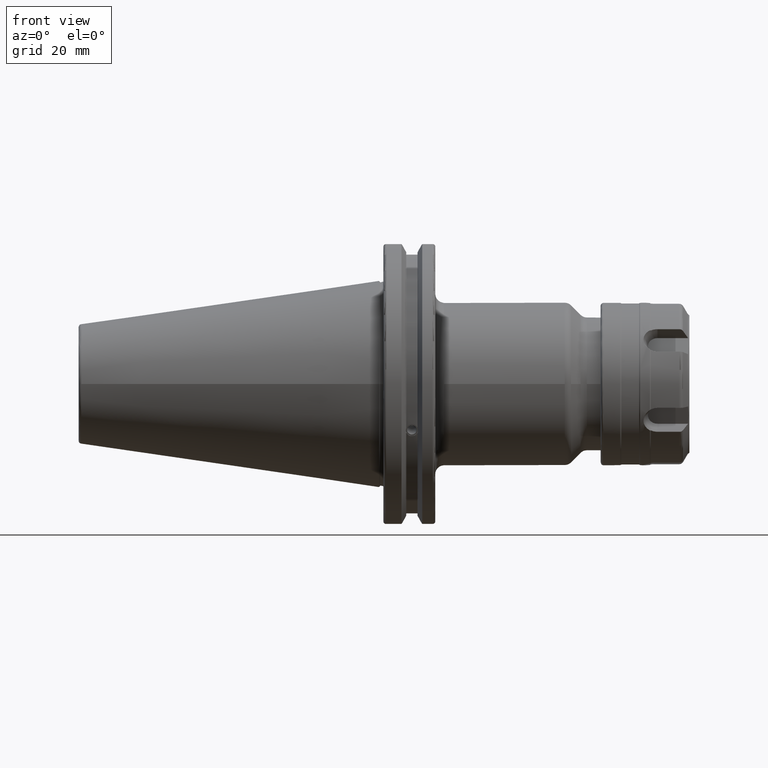
[diagram: clean part render]
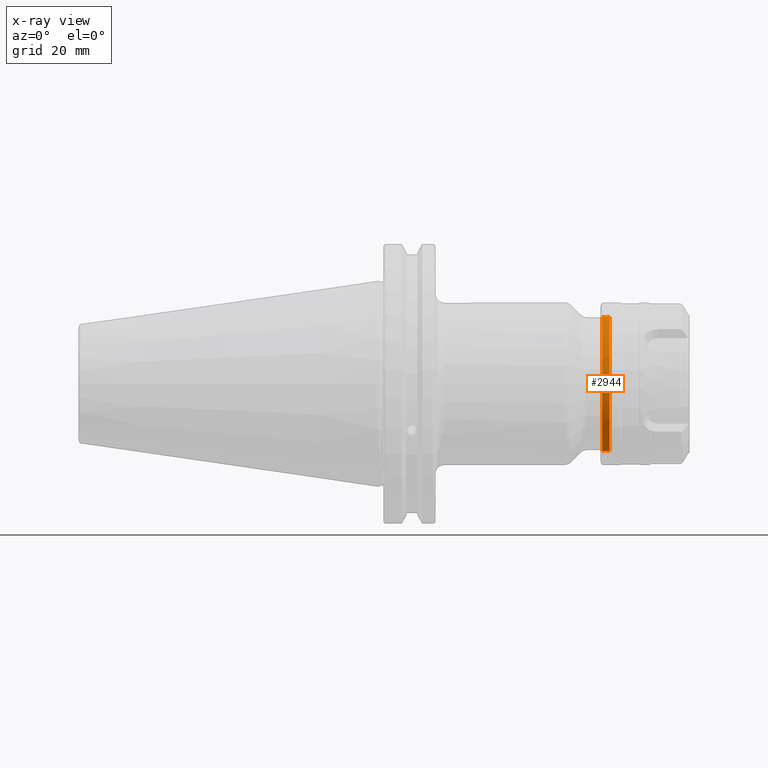
[diagram: x-ray — body ghosted, one internal face saturated and labeled with its STEP entity id]
A machine part, front view, then the same camera in x-ray: the body is ghosted and one INTERNAL B-rep face — a face not visible from any outside direction — is saturated and labeled: STEP entity #2944.
In plain terms, the highlighted cylindrical surface (bore or boss wall) has radius 22.7 mm, axis along (1, -0, -0).
Its self-contained STEP definition (entity closure, byte-faithful):
#194=CYLINDRICAL_SURFACE('',#3309,22.7);
#338=LINE('',#5808,#487);
#487=VECTOR('',#4059,22.7);
#769=FACE_OUTER_BOUND('',#954,.T.);
#954=EDGE_LOOP('',(#2660,#2661,#2662,#2663,#2664));
#1113=CIRCLE('',#3305,22.7);
#1114=CIRCLE('',#3306,22.7);
#1116=CIRCLE('',#3310,22.7);
#1415=VERTEX_POINT('',#5797);
#1416=VERTEX_POINT('',#5799);
#1418=VERTEX_POINT('',#5806);
#1840=EDGE_CURVE('',#1415,#1416,#1113,.T.);
#1841=EDGE_CURVE('',#1416,#1415,#1114,.T.);
#1843=EDGE_CURVE('',#1418,#1418,#1116,.T.);
#1844=EDGE_CURVE('',#1418,#1416,#338,.T.);
#2660=ORIENTED_EDGE('',*,*,#1843,.T.);
#2661=ORIENTED_EDGE('',*,*,#1844,.T.);
#2662=ORIENTED_EDGE('',*,*,#1840,.F.);
#2663=ORIENTED_EDGE('',*,*,#1841,.F.);
#2664=ORIENTED_EDGE('',*,*,#1844,.F.);
#2944=ADVANCED_FACE('',(#769),#194,.F.);
#3305=AXIS2_PLACEMENT_3D('',#5800,#4047,#4048);
#3306=AXIS2_PLACEMENT_3D('',#5801,#4049,#4050);
#3309=AXIS2_PLACEMENT_3D('',#5805,#4055,#4056);
#3310=AXIS2_PLACEMENT_3D('',#5807,#4057,#4058);
#4047=DIRECTION('center_axis',(1.,0.,0.));
#4048=DIRECTION('ref_axis',(0.,-1.,1.83697019872103E-16));
#4049=DIRECTION('center_axis',(1.,0.,0.));
#4050=DIRECTION('ref_axis',(0.,-1.,1.83697019872103E-16));
#4055=DIRECTION('center_axis',(1.,0.,0.));
#4056=DIRECTION('ref_axis',(0.,1.,0.));
#4057=DIRECTION('center_axis',(1.,0.,0.));
#4058=DIRECTION('ref_axis',(0.,0.,-1.));
#4059=DIRECTION('',(-1.,0.,0.));
#5797=CARTESIAN_POINT('',(0.5,-2.77994823406449E-15,22.7));
#5799=CARTESIAN_POINT('',(0.5,-22.7,-2.77994823406449E-15));
#5800=CARTESIAN_POINT('Origin',(0.5,0.,0.));
#5801=CARTESIAN_POINT('Origin',(0.5,0.,0.));
#5805=CARTESIAN_POINT('Origin',(1.5,0.,0.));
#5806=CARTESIAN_POINT('',(3.,-22.7,-2.77994823406449E-15));
#5807=CARTESIAN_POINT('Origin',(3.,0.,0.));
#5808=CARTESIAN_POINT('',(1.5,-22.7,-2.77994823406449E-15));